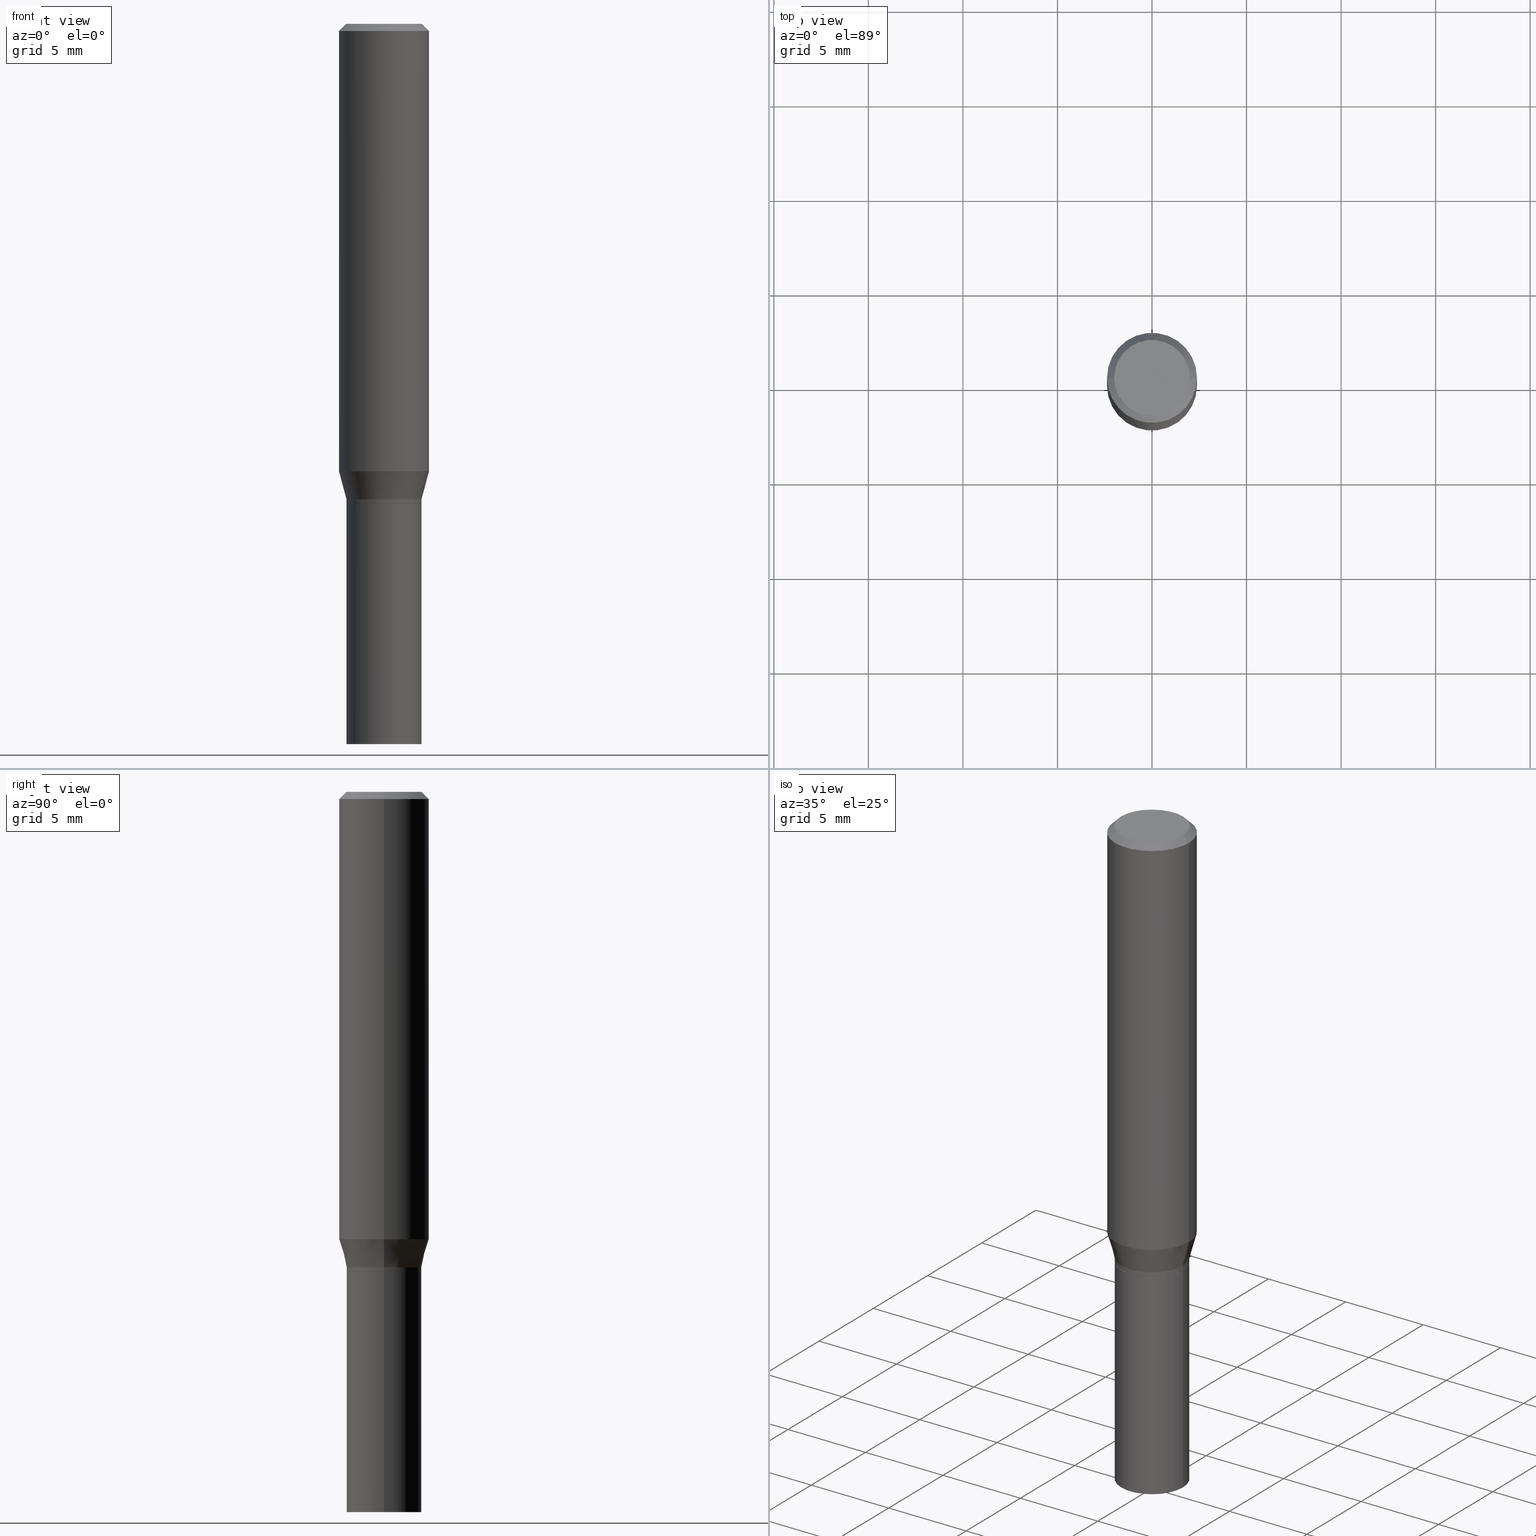
[diagram: canonical four-view strip — front | top / right | iso, engineering-drawing reading convention]
A machine part, canonical four-view strip (front | top / right | iso — engineering-drawing reading convention). The complete STEP part file that produces these views, byte-faithful:
ISO-10303-21;
HEADER;
FILE_DESCRIPTION (( 'STEP AP203' ),
    '1' );
FILE_NAME ('30440.STEP',
    '2024-03-13T16:10:18',
    ( '' ),
    ( '' ),
    'SwSTEP 2.0',
    'SolidWorks 2023',
    '' );
FILE_SCHEMA (( 'CONFIG_CONTROL_DESIGN' ));
ENDSEC;

DATA;
#1 = CONICAL_SURFACE ( 'NONE', #105, 0.07810000000000004439, 0.2617993877991501850 ) ;
#2 = DIRECTION ( 'NONE',  ( 2.438088387897960049E-29, -3.491481338843145188E-15, -1.000000000000000000 ) ) ;
#3 = DIRECTION ( 'NONE',  ( 1.000000000000000000, -6.982962677686265922E-15, 0.000000000000000000 ) ) ;
#4 = CIRCLE ( 'NONE', #417, 0.07810000000000004439 ) ;
#5 = VERTEX_POINT ( 'NONE', #394 ) ;
#6 = CARTESIAN_POINT ( 'NONE',  ( 3.668203209277705088E-31, -5.237222008264718399E-17, -0.01499999999999999944 ) ) ;
#7 = DIRECTION ( 'NONE',  ( 0.7071067811865469066, -7.319954787623254468E-15, -0.7071067811865481278 ) ) ;
#8 = CARTESIAN_POINT ( 'NONE',  ( 0.000000000000000000, 0.000000000000000000, 0.000000000000000000 ) ) ;
#9 = CIRCLE ( 'NONE', #368, 0.07810000000000000275 ) ;
#10 = CC_DESIGN_APPROVAL ( #120, ( #254 ) ) ;
#11 = VERTEX_POINT ( 'NONE', #351 ) ;
#12 = ADVANCED_FACE ( 'NONE', ( #389 ), #95, .F. ) ;
#13 = ORIENTED_EDGE ( 'NONE', *, *, #46, .F. ) ;
#14 = VECTOR ( 'NONE', #137, 39.37007874015748143 ) ;
#15 = ORIENTED_EDGE ( 'NONE', *, *, #307, .T. ) ;
#16 = MANIFOLD_SOLID_BREP ( 'Body-Move/Copy2[1]', #253 ) ;
#17 = ORIENTED_EDGE ( 'NONE', *, *, #89, .F. ) ;
#18 = EDGE_CURVE ( 'NONE', #153, #402, #134, .T. ) ;
#19 = DIRECTION ( 'NONE',  ( 2.438088387897960049E-29, -3.491481338843145188E-15, -1.000000000000000000 ) ) ;
#20 = PERSON_AND_ORGANIZATION ( #39, #456 ) ;
#21 = ORIENTED_EDGE ( 'NONE', *, *, #399, .F. ) ;
#22 = DIRECTION ( 'NONE',  ( 0.2588190451025214611, 1.565188264969620982E-15, 0.9659258262890679791 ) ) ;
#23 = DIRECTION ( 'NONE',  ( 1.000000000000000000, -6.982962677686269077E-15, 0.000000000000000000 ) ) ;
#24 = SECURITY_CLASSIFICATION_LEVEL ( 'unclassified' ) ;
#25 = DIRECTION ( 'NONE',  ( 1.000000000000000000, -6.982962677686266711E-15, 0.000000000000000000 ) ) ;
#26 = LINE ( 'NONE', #92, #189 ) ;
#27 = CYLINDRICAL_SURFACE ( 'NONE', #409, 0.07810000000000000275 ) ;
#28 = VECTOR ( 'NONE', #216, 39.37007874015748143 ) ;
#29 = PERSON_AND_ORGANIZATION_ROLE ( 'creator' ) ;
#30 = LINE ( 'NONE', #428, #28 ) ;
#31 = EDGE_CURVE ( 'NONE', #11, #341, #267, .T. ) ;
#32 = LINE ( 'NONE', #423, #154 ) ;
#33 = PRODUCT_DEFINITION ( 'UNKNOWN', '', #328, #268 ) ;
#34 = MANIFOLD_SOLID_BREP ( 'Body-Move/Copy2[2]', #45 ) ;
#35 = PLANE ( 'NONE',  #77 ) ;
#36 = AXIS2_PLACEMENT_3D ( 'NONE', #465, #391, #237 ) ;
#37 = APPROVAL_PERSON_ORGANIZATION ( #20, #48, #284 ) ;
#38 = EDGE_LOOP ( 'NONE', ( #306, #161, #299, #17 ) ) ;
#39 = PERSON ( 'UNSPECIFIED', 'UNSPECIFIED', 'UNSPECIFIED', ('UNSPECIFIED'), ('UNSPECIFIED'), ('UNSPECIFIED') ) ;
#40 = DIRECTION ( 'NONE',  ( -1.000000000000000000, 6.982962677686265922E-15, 0.000000000000000000 ) ) ;
#41 = CIRCLE ( 'NONE', #234, 0.07875000000000001443 ) ;
#42 = CC_DESIGN_SECURITY_CLASSIFICATION ( #254, ( #328 ) ) ;
#43 = FACE_OUTER_BOUND ( 'NONE', #50, .T. ) ;
#44 = EDGE_LOOP ( 'NONE', ( #196, #47 ) ) ;
#45 = CLOSED_SHELL ( 'NONE', ( #250, #180, #219, #359, #228, #426, #289, #322, #104, #12, #187, #67 ) ) ;
#46 = EDGE_CURVE ( 'NONE', #199, #205, #32, .T. ) ;
#47 = ORIENTED_EDGE ( 'NONE', *, *, #433, .F. ) ;
#48 = APPROVAL ( #464, 'UNSPECIFIED' ) ;
#49 = VERTEX_POINT ( 'NONE', #57 ) ;
#50 = EDGE_LOOP ( 'NONE', ( #160, #80, #400, #167 ) ) ;
#51 = ORIENTED_EDGE ( 'NONE', *, *, #454, .F. ) ;
#52 = CARTESIAN_POINT ( 'NONE',  ( 3.668203209277704895E-29, -5.237222008264718177E-15, -1.500000000000000222 ) ) ;
#53 = EDGE_LOOP ( 'NONE', ( #148, #108 ) ) ;
#54 = DIRECTION ( 'NONE',  ( -2.445468806185136597E-29, 3.491481338843145583E-15, 1.000000000000000000 ) ) ;
#55 = PERSON_AND_ORGANIZATION_ROLE ( 'creator' ) ;
#56 = EDGE_CURVE ( 'NONE', #402, #337, #162, .T. ) ;
#57 = CARTESIAN_POINT ( 'NONE',  ( 0.09375000000000001388, -3.907293739496527425E-15, -0.9315934048615475138 ) ) ;
#58 = LINE ( 'NONE', #206, #111 ) ;
#59 = CARTESIAN_POINT ( 'NONE',  ( 0.000000000000000000, 0.000000000000000000, 0.000000000000000000 ) ) ;
#60 = FACE_OUTER_BOUND ( 'NONE', #113, .T. ) ;
#61 = DIRECTION ( 'NONE',  ( -2.438088387897960049E-29, 3.491481338843145188E-15, 1.000000000000000000 ) ) ;
#62 = DIRECTION ( 'NONE',  ( 1.000000000000000000, -6.982962677686269077E-15, 0.000000000000000000 ) ) ;
#63 = LINE ( 'NONE', #98, #244 ) ;
#64 = CARTESIAN_POINT ( 'NONE',  ( 2.278182611636715174E-29, -3.252640988463440710E-15, -0.9315934048615475138 ) ) ;
#65 = FACE_OUTER_BOUND ( 'NONE', #38, .T. ) ;
#66 = CONICAL_SURFACE ( 'NONE', #163, 0.07810000000000004439, 0.2617993877991501850 ) ;
#67 = ADVANCED_FACE ( 'NONE', ( #326 ), #172, .T. ) ;
#68 = DIRECTION ( 'NONE',  ( 1.000000000000000000, -6.982962677686266711E-15, 0.000000000000000000 ) ) ;
#69 = CARTESIAN_POINT ( 'NONE',  ( 2.445468806185136877E-29, -3.491481338843145977E-15, -1.000000000000000222 ) ) ;
#70 = DIRECTION ( 'NONE',  ( -2.445468806185136597E-29, 3.491481338843145583E-15, 1.000000000000000000 ) ) ;
#71 = CARTESIAN_POINT ( 'NONE',  ( 0.000000000000000000, 0.000000000000000000, 0.000000000000000000 ) ) ;
#72 = CIRCLE ( 'NONE', #342, 0.09375000000000001388 ) ;
#73 = CARTESIAN_POINT ( 'NONE',  ( 0.07810000000000000275, -4.036850723970443413E-15, -1.000000000000000222 ) ) ;
#74 = PERSON_AND_ORGANIZATION ( #39, #456 ) ;
#75 = VERTEX_POINT ( 'NONE', #319 ) ;
#76 = ORIENTED_EDGE ( 'NONE', *, *, #208, .T. ) ;
#77 = AXIS2_PLACEMENT_3D ( 'NONE', #329, #2, #141 ) ;
#78 = CIRCLE ( 'NONE', #210, 0.07875000000000001443 ) ;
#79 = EDGE_LOOP ( 'NONE', ( #370, #129, #338, #191 ) ) ;
#80 = ORIENTED_EDGE ( 'NONE', *, *, #292, .T. ) ;
#81 = ORIENTED_EDGE ( 'NONE', *, *, #217, .F. ) ;
#82 = CARTESIAN_POINT ( 'NONE',  ( -0.07810000000000004439, -2.934801721545085420E-15, -0.9995000000000000551 ) ) ;
#83 = APPROVAL_ROLE ( '' ) ;
#84 = CONICAL_SURFACE ( 'NONE', #352, 0.07760000000000000231, 0.7853981633974653764 ) ;
#85 = DIRECTION ( 'NONE',  ( -1.000000000000000000, 6.982962677686265922E-15, -4.876176775795935793E-29 ) ) ;
#86 = CC_DESIGN_PERSON_AND_ORGANIZATION_ASSIGNMENT ( #323, #29, ( #33 ) ) ;
#87 = CARTESIAN_POINT ( 'NONE',  ( 2.445468806185136877E-29, -3.491481338843145977E-15, -1.000000000000000222 ) ) ;
#88 = DIRECTION ( 'NONE',  ( 1.000000000000000000, -6.982962677686266711E-15, 0.000000000000000000 ) ) ;
#89 = EDGE_CURVE ( 'NONE', #341, #226, #90, .T. ) ;
#90 = LINE ( 'NONE', #380, #14 ) ;
#91 = DATE_TIME_ROLE ( 'creation_date' ) ;
#92 = CARTESIAN_POINT ( 'NONE',  ( -0.07810000000000000275, 5.549338766286382647E-16, -3.841688305489081275E-30 ) ) ;
#93 = FACE_OUTER_BOUND ( 'NONE', #375, .T. ) ;
#94 = AXIS2_PLACEMENT_3D ( 'NONE', #64, #358, #121 ) ;
#95 = PLANE ( 'NONE',  #447 ) ;
#96 = DIRECTION ( 'NONE',  ( -2.445468806185136597E-29, 3.491481338843145583E-15, 1.000000000000000000 ) ) ;
#97 = CARTESIAN_POINT ( 'NONE',  ( 3.668203209277705088E-31, -5.237222008264718399E-17, -0.01499999999999999944 ) ) ;
#98 = CARTESIAN_POINT ( 'NONE',  ( -0.07760000000000000231, -2.940100175893308216E-15, -1.000000000000000222 ) ) ;
#99 = EDGE_CURVE ( 'NONE', #11, #199, #63, .T. ) ;
#100 = DIRECTION ( 'NONE',  ( -2.445468806185136597E-29, 3.491481338843145583E-15, 1.000000000000000000 ) ) ;
#101 = LENGTH_MEASURE_WITH_UNIT ( LENGTH_MEASURE( 0.02539999999999999897 ), #142 );
#102 = PERSON_AND_ORGANIZATION_ROLE ( 'design_owner' ) ;
#103 = CIRCLE ( 'NONE', #434, 0.07810000000000004439 ) ;
#104 = ADVANCED_FACE ( 'NONE', ( #357 ), #35, .F. ) ;
#105 = AXIS2_PLACEMENT_3D ( 'NONE', #110, #145, #252 ) ;
#106 = DIRECTION ( 'NONE',  ( 1.000000000000000000, -6.982962677686266711E-15, 0.000000000000000000 ) ) ;
#107 = APPLICATION_PROTOCOL_DEFINITION ( 'international standard', 'config_control_design', 1994, #283 ) ;
#108 = ORIENTED_EDGE ( 'NONE', *, *, #31, .F. ) ;
#109 = DIRECTION ( 'NONE',  ( 1.000000000000000000, -6.982962677686267499E-15, 4.876807983162778740E-29 ) ) ;
#110 = CARTESIAN_POINT ( 'NONE',  ( 2.421014118123285332E-29, -3.456566525454714328E-15, -0.9900000000000001021 ) ) ;
#111 = VECTOR ( 'NONE', #211, 39.37007874015748143 ) ;
#112 = ORIENTED_EDGE ( 'NONE', *, *, #331, .T. ) ;
#113 = EDGE_LOOP ( 'NONE', ( #51, #264, #445, #449 ) ) ;
#114 = ORIENTED_EDGE ( 'NONE', *, *, #18, .T. ) ;
#115 = AXIS2_PLACEMENT_3D ( 'NONE', #97, #249, #392 ) ;
#116 = APPROVAL_PERSON_ORGANIZATION ( #74, #132, #178 ) ;
#117 = VERTEX_POINT ( 'NONE', #288 ) ;
#118 = ORIENTED_EDGE ( 'NONE', *, *, #18, .F. ) ;
#119 = CALENDAR_DATE ( 2024, 13, 3 ) ;
#120 = APPROVAL ( #415, 'UNSPECIFIED' ) ;
#121 = DIRECTION ( 'NONE',  ( 1.000000000000000000, -6.982962677686266711E-15, 0.000000000000000000 ) ) ;
#122 = ORIENTED_EDGE ( 'NONE', *, *, #31, .T. ) ;
#123 = LOCAL_TIME ( 12, 10, 18.00000000000000000, #325 ) ;
#124 = CARTESIAN_POINT ( 'NONE',  ( 2.421014118123285332E-29, -3.456566525454714328E-15, -0.9900000000000001021 ) ) ;
#125 = DIRECTION ( 'NONE',  ( -2.445468806185136597E-29, 3.491481338843145583E-15, 1.000000000000000000 ) ) ;
#126 = FACE_OUTER_BOUND ( 'NONE', #271, .T. ) ;
#127 = ADVANCED_FACE ( 'NONE', ( #429 ), #251, .F. ) ;
#128 = APPROVAL_DATE_TIME ( #384, #132 ) ;
#129 = ORIENTED_EDGE ( 'NONE', *, *, #399, .T. ) ;
#130 = CARTESIAN_POINT ( 'NONE',  ( 0.000000000000000000, 0.000000000000000000, 0.000000000000000000 ) ) ;
#131 = CARTESIAN_POINT ( 'NONE',  ( 2.444246071782044356E-29, -3.489735598173724079E-15, -0.9995000000000000551 ) ) ;
#132 = APPROVAL ( #274, 'UNSPECIFIED' ) ;
#133 = COORDINATED_UNIVERSAL_TIME_OFFSET ( 5, 0, .BEHIND. ) ;
#134 = LINE ( 'NONE', #280, #387 ) ;
#135 = CARTESIAN_POINT ( 'NONE',  ( 0.07810000000000000275, -5.453693851272974364E-16, 3.808294061896625703E-30 ) ) ;
#136 = DIRECTION ( 'NONE',  ( 1.000000000000000000, -6.982962677686269077E-15, 0.000000000000000000 ) ) ;
#137 = DIRECTION ( 'NONE',  ( 0.7071067811865595631, -2.468850131082382884E-15, 0.7071067811865354713 ) ) ;
#138 = VECTOR ( 'NONE', #220, 39.37007874015748143 ) ;
#139 = AXIS2_PLACEMENT_3D ( 'NONE', #52, #96, #88 ) ;
#140 = EDGE_CURVE ( 'NONE', #117, #337, #278, .T. ) ;
#141 = DIRECTION ( 'NONE',  ( -1.000000000000000000, 6.982962677686265922E-15, -4.876176775795935793E-29 ) ) ;
#142 =( LENGTH_UNIT ( ) NAMED_UNIT ( * ) SI_UNIT ( $, .METRE. ) );
#143 = CARTESIAN_POINT ( 'NONE',  ( -0.09375000000000001388, 6.661338147750940229E-16, -4.611501647113973995E-30 ) ) ;
#144 = EDGE_CURVE ( 'NONE', #151, #5, #182, .T. ) ;
#145 = DIRECTION ( 'NONE',  ( -2.445468806185136597E-29, 3.491481338843145583E-15, 1.000000000000000000 ) ) ;
#146 = APPLICATION_PROTOCOL_DEFINITION ( 'international standard', 'config_control_design', 1994, #383 ) ;
#147 = DIRECTION ( 'NONE',  ( -2.445468806185136877E-29, 3.491481338843145188E-15, 1.000000000000000000 ) ) ;
#148 = ORIENTED_EDGE ( 'NONE', *, *, #185, .F. ) ;
#149 = CONICAL_SURFACE ( 'NONE', #395, 0.07760000000000000231, 0.7853981633974653764 ) ;
#150 = DIRECTION ( 'NONE',  ( 2.445468806185136597E-29, -3.491481338843145583E-15, -1.000000000000000000 ) ) ;
#151 = VERTEX_POINT ( 'NONE', #73 ) ;
#152 = CARTESIAN_POINT ( 'NONE',  ( -4.217098251943042903E-46, 6.020898656931179793E-32, 1.724453912999037237E-17 ) ) ;
#153 = VERTEX_POINT ( 'NONE', #192 ) ;
#154 = VECTOR ( 'NONE', #247, 39.37007874015748143 ) ;
#155 = CC_DESIGN_APPROVAL ( #48, ( #328 ) ) ;
#156 = DIRECTION ( 'NONE',  ( -2.445468806185136597E-29, 3.491481338843145583E-15, 1.000000000000000000 ) ) ;
#157 = EDGE_LOOP ( 'NONE', ( #305, #197, #361, #118 ) ) ;
#158 = CARTESIAN_POINT ( 'NONE',  ( 2.445468806185136877E-29, -3.491481338843145977E-15, -1.000000000000000222 ) ) ;
#159 = DIRECTION ( 'NONE',  ( -2.445468806185136597E-29, 3.491481338843145583E-15, 1.000000000000000000 ) ) ;
#160 = ORIENTED_EDGE ( 'NONE', *, *, #311, .T. ) ;
#161 = ORIENTED_EDGE ( 'NONE', *, *, #99, .T. ) ;
#162 = CIRCLE ( 'NONE', #455, 0.09375000000000001388 ) ;
#163 = AXIS2_PLACEMENT_3D ( 'NONE', #194, #335, #406 ) ;
#164 = ORIENTED_EDGE ( 'NONE', *, *, #282, .T. ) ;
#165 = PRODUCT_DEFINITION_SHAPE ( 'NONE', 'NONE',  #33 ) ;
#166 = VERTEX_POINT ( 'NONE', #362 ) ;
#167 = ORIENTED_EDGE ( 'NONE', *, *, #410, .F. ) ;
#168 = CYLINDRICAL_SURFACE ( 'NONE', #260, 0.07810000000000000275 ) ;
#169 = CARTESIAN_POINT ( 'NONE',  ( 0.000000000000000000, 0.000000000000000000, 0.000000000000000000 ) ) ;
#170 = CALENDAR_DATE ( 2024, 13, 3 ) ;
#171 = AXIS2_PLACEMENT_3D ( 'NONE', #8, #156, #223 ) ;
#172 = CYLINDRICAL_SURFACE ( 'NONE', #36, 0.07810000000000004439 ) ;
#173 = LINE ( 'NONE', #143, #441 ) ;
#174 = DIRECTION ( 'NONE',  ( -2.445468806185136597E-29, 3.491481338843145583E-15, 1.000000000000000000 ) ) ;
#175 = DIMENSIONAL_EXPONENTS ( 1.000000000000000000, 0.000000000000000000, 0.000000000000000000, 0.000000000000000000, 0.000000000000000000, 0.000000000000000000, 0.000000000000000000 ) ;
#176 = CALENDAR_DATE ( 2024, 13, 3 ) ;
#177 = LINE ( 'NONE', #135, #379 ) ;
#178 = APPROVAL_ROLE ( '' ) ;
#179 = DIRECTION ( 'NONE',  ( -2.445468806185136597E-29, 3.491481338843145583E-15, 1.000000000000000000 ) ) ;
#180 = ADVANCED_FACE ( 'NONE', ( #65 ), #84, .T. ) ;
#181 = ORIENTED_EDGE ( 'NONE', *, *, #204, .F. ) ;
#182 = CIRCLE ( 'NONE', #296, 0.07810000000000000275 ) ;
#183 = AXIS2_PLACEMENT_3D ( 'NONE', #71, #367, #431 ) ;
#184 = CARTESIAN_POINT ( 'NONE',  ( 3.668203209277705088E-31, -5.237222008264718399E-17, -0.01499999999999999944 ) ) ;
#185 = EDGE_CURVE ( 'NONE', #341, #11, #198, .T. ) ;
#186 = ORIENTED_EDGE ( 'NONE', *, *, #282, .F. ) ;
#187 = ADVANCED_FACE ( 'NONE', ( #340 ), #149, .T. ) ;
#188 = CIRCLE ( 'NONE', #207, 0.07810000000000004439 ) ;
#189 = VECTOR ( 'NONE', #356, 39.37007874015748143 ) ;
#190 = DIRECTION ( 'NONE',  ( 1.000000000000000000, -6.982962677686266711E-15, 0.000000000000000000 ) ) ;
#191 = ORIENTED_EDGE ( 'NONE', *, *, #393, .F. ) ;
#192 = CARTESIAN_POINT ( 'NONE',  ( -0.07875000000000001443, 5.760944209091169839E-16, 1.724453912998643423E-17 ) ) ;
#193 = CARTESIAN_POINT ( 'NONE',  ( 0.07810000000000004439, -4.035104983301021910E-15, -0.9995000000000000551 ) ) ;
#194 = CARTESIAN_POINT ( 'NONE',  ( 2.421014118123285332E-29, -3.456566525454714328E-15, -0.9900000000000001021 ) ) ;
#195 = AXIS2_PLACEMENT_3D ( 'NONE', #248, #382, #314 ) ;
#196 = ORIENTED_EDGE ( 'NONE', *, *, #442, .F. ) ;
#197 = ORIENTED_EDGE ( 'NONE', *, *, #140, .T. ) ;
#198 = CIRCLE ( 'NONE', #316, 0.07760000000000000231 ) ;
#199 = VERTEX_POINT ( 'NONE', #82 ) ;
#200 = CARTESIAN_POINT ( 'NONE',  ( 5.453693851273217925E-16, 0.07809999999999651943, -1.000000000000000444 ) ) ;
#201 = SHAPE_DEFINITION_REPRESENTATION ( #165, #225 ) ;
#202 = DIRECTION ( 'NONE',  ( 1.000000000000000000, -6.982962677686265922E-15, 4.876176775795935793E-29 ) ) ;
#203 = DIRECTION ( 'NONE',  ( 1.000000000000000000, -6.982962677686266711E-15, 4.876176775795935232E-29 ) ) ;
#204 = EDGE_CURVE ( 'NONE', #337, #402, #285, .T. ) ;
#205 = VERTEX_POINT ( 'NONE', #290 ) ;
#206 = CARTESIAN_POINT ( 'NONE',  ( 0.09375000000000001388, -6.546527510330875041E-16, 4.571415727308690506E-30 ) ) ;
#207 = AXIS2_PLACEMENT_3D ( 'NONE', #315, #466, #23 ) ;
#208 = EDGE_CURVE ( 'NONE', #5, #151, #9, .T. ) ;
#209 = DIRECTION ( 'NONE',  ( 1.000000000000000000, -6.982962677686265922E-15, 0.000000000000000000 ) ) ;
#210 = AXIS2_PLACEMENT_3D ( 'NONE', #275, #125, #239 ) ;
#211 = DIRECTION ( 'NONE',  ( -2.445468806185136877E-29, 3.491481338843145188E-15, 1.000000000000000000 ) ) ;
#212 = CARTESIAN_POINT ( 'NONE',  ( 0.09375000000000001388, -7.070249711157346819E-16, -0.01499999999999999944 ) ) ;
#213 = DIRECTION ( 'NONE',  ( 1.000000000000000000, -6.982962677686266711E-15, 4.876176775795935232E-29 ) ) ;
#214 = DIRECTION ( 'NONE',  ( -2.445468806185136597E-29, 3.491481338843145583E-15, 1.000000000000000000 ) ) ;
#215 = EDGE_LOOP ( 'NONE', ( #411, #122, #377, #186 ) ) ;
#216 = DIRECTION ( 'NONE',  ( -0.2588190451025214611, 5.211531920934550253E-15, 0.9659258262890679791 ) ) ;
#217 = EDGE_CURVE ( 'NONE', #226, #75, #398, .T. ) ;
#218 = APPROVAL_PERSON_ORGANIZATION ( #355, #120, #83 ) ;
#219 = ADVANCED_FACE ( 'NONE', ( #363 ), #277, .T. ) ;
#220 = DIRECTION ( 'NONE',  ( -2.445468806185136877E-29, 3.491481338843145188E-15, 1.000000000000000000 ) ) ;
#221 = AXIS2_PLACEMENT_3D ( 'NONE', #200, #19, #85 ) ;
#222 = EDGE_CURVE ( 'NONE', #153, #117, #41, .T. ) ;
#223 = DIRECTION ( 'NONE',  ( 1.000000000000000000, -6.982962677686266711E-15, 4.876176775795936353E-29 ) ) ;
#224 = EDGE_LOOP ( 'NONE', ( #15, #443, #229, #81 ) ) ;
#225 = ADVANCED_BREP_SHAPE_REPRESENTATION ( '30440', ( #16, #34, #183 ), #235 ) ;
#226 = VERTEX_POINT ( 'NONE', #193 ) ;
#227 = DIRECTION ( 'NONE',  ( 1.000000000000000000, -6.982962677686266711E-15, 0.000000000000000000 ) ) ;
#228 = ADVANCED_FACE ( 'NONE', ( #43 ), #66, .T. ) ;
#229 = ORIENTED_EDGE ( 'NONE', *, *, #311, .F. ) ;
#230 = COORDINATED_UNIVERSAL_TIME_OFFSET ( 5, 0, .BEHIND. ) ;
#231 =( NAMED_UNIT ( * ) SI_UNIT ( $, .STERADIAN. ) SOLID_ANGLE_UNIT ( ) );
#232 = EDGE_LOOP ( 'NONE', ( #373, #427, #266, #259 ) ) ;
#233 = PRODUCT ( '30440', '30440', '', ( #295 ) ) ;
#234 = AXIS2_PLACEMENT_3D ( 'NONE', #152, #294, #109 ) ;
#235 =( GEOMETRIC_REPRESENTATION_CONTEXT ( 3 ) GLOBAL_UNCERTAINTY_ASSIGNED_CONTEXT ( ( #304 ) ) GLOBAL_UNIT_ASSIGNED_CONTEXT ( ( #396, #255, #231 ) ) REPRESENTATION_CONTEXT ( 'NONE', 'WORKASPACE' ) );
#236 = DIRECTION ( 'NONE',  ( -2.445468806185136597E-29, 3.491481338843145583E-15, 1.000000000000000000 ) ) ;
#237 = DIRECTION ( 'NONE',  ( 1.000000000000000000, -6.982962677686266711E-15, 4.876176775795936353E-29 ) ) ;
#238 = CYLINDRICAL_SURFACE ( 'NONE', #378, 0.09375000000000001388 ) ;
#239 = DIRECTION ( 'NONE',  ( 1.000000000000000000, -6.982962677686267499E-15, 4.876807983162778740E-29 ) ) ;
#240 = CC_DESIGN_PERSON_AND_ORGANIZATION_ASSIGNMENT ( #345, #350, ( #254 ) ) ;
#241 = DIRECTION ( 'NONE',  ( -2.445468806185136597E-29, 3.491481338843145583E-15, 1.000000000000000000 ) ) ;
#242 = CARTESIAN_POINT ( 'NONE',  ( 2.444246071782044356E-29, -3.489735598173724079E-15, -0.9995000000000000551 ) ) ;
#243 = DATE_TIME_ROLE ( 'classification_date' ) ;
#244 = VECTOR ( 'NONE', #353, 39.37007874015748143 ) ;
#245 = CARTESIAN_POINT ( 'NONE',  ( 3.668203209277705088E-31, -5.237222008264718399E-17, -0.01499999999999999944 ) ) ;
#246 = CC_DESIGN_APPROVAL ( #132, ( #33 ) ) ;
#247 = DIRECTION ( 'NONE',  ( -2.445468806185136877E-29, 3.491481338843145188E-15, 1.000000000000000000 ) ) ;
#248 = CARTESIAN_POINT ( 'NONE',  ( 3.668203209277704895E-29, -5.237222008264718177E-15, -1.500000000000000222 ) ) ;
#249 = DIRECTION ( 'NONE',  ( 2.445468806185136597E-29, -3.491481338843145583E-15, -1.000000000000000000 ) ) ;
#250 = ADVANCED_FACE ( 'NONE', ( #298 ), #263, .T. ) ;
#251 = PLANE ( 'NONE',  #403 ) ;
#252 = DIRECTION ( 'NONE',  ( 1.000000000000000000, -6.982962677686269077E-15, 0.000000000000000000 ) ) ;
#253 = CLOSED_SHELL ( 'NONE', ( #437, #127, #333, #265 ) ) ;
#254 = SECURITY_CLASSIFICATION ( '', '', #24 ) ;
#255 =( NAMED_UNIT ( * ) PLANE_ANGLE_UNIT ( ) SI_UNIT ( $, .RADIAN. ) );
#256 = ORIENTED_EDGE ( 'NONE', *, *, #433, .T. ) ;
#257 = VERTEX_POINT ( 'NONE', #444 ) ;
#258 = DIRECTION ( 'NONE',  ( 1.000000000000000000, -6.982962677686266711E-15, 0.000000000000000000 ) ) ;
#259 = ORIENTED_EDGE ( 'NONE', *, *, #330, .F. ) ;
#260 = AXIS2_PLACEMENT_3D ( 'NONE', #386, #462, #203 ) ;
#261 = CIRCLE ( 'NONE', #139, 0.07810000000000000275 ) ;
#262 = EDGE_LOOP ( 'NONE', ( #112, #461, #181, #405 ) ) ;
#263 = CYLINDRICAL_SURFACE ( 'NONE', #171, 0.07810000000000004439 ) ;
#264 = ORIENTED_EDGE ( 'NONE', *, *, #330, .T. ) ;
#265 = ADVANCED_FACE ( 'NONE', ( #369 ), #414, .F. ) ;
#266 = ORIENTED_EDGE ( 'NONE', *, *, #410, .T. ) ;
#267 = CIRCLE ( 'NONE', #440, 0.07760000000000000231 ) ;
#268 = DESIGN_CONTEXT ( 'detailed design', #283, 'design' ) ;
#269 = ORIENTED_EDGE ( 'NONE', *, *, #208, .F. ) ;
#270 = CALENDAR_DATE ( 2024, 13, 3 ) ;
#271 = EDGE_LOOP ( 'NONE', ( #21, #256, #438, #269 ) ) ;
#272 = DATE_AND_TIME ( #422, #425 ) ;
#273 = CARTESIAN_POINT ( 'NONE',  ( -0.09375000000000001388, -2.586507173688346391E-15, -0.9315934048615475138 ) ) ;
#274 = APPROVAL_STATUS ( 'not_yet_approved' ) ;
#275 = CARTESIAN_POINT ( 'NONE',  ( -4.217098251943042903E-46, 6.020898656931179793E-32, 1.724453912999037237E-17 ) ) ;
#276 = CARTESIAN_POINT ( 'NONE',  ( 2.278182611636715174E-29, -3.252640988463440710E-15, -0.9315934048615475138 ) ) ;
#277 = CONICAL_SURFACE ( 'NONE', #327, 0.09375000000000001388, 0.7853981633974473908 ) ;
#278 = LINE ( 'NONE', #418, #336 ) ;
#279 = DATE_AND_TIME ( #119, #436 ) ;
#280 = CARTESIAN_POINT ( 'NONE',  ( -0.09375000000000001388, 6.022805309504404249E-16, -0.01499999999999999944 ) ) ;
#281 = FACE_OUTER_BOUND ( 'NONE', #232, .T. ) ;
#282 = EDGE_CURVE ( 'NONE', #199, #226, #103, .T. ) ;
#283 = APPLICATION_CONTEXT ( 'configuration controlled 3d designs of mechanical parts and assemblies' ) ;
#284 = APPROVAL_ROLE ( '' ) ;
#285 = CIRCLE ( 'NONE', #372, 0.09375000000000001388 ) ;
#286 = ORIENTED_EDGE ( 'NONE', *, *, #222, .F. ) ;
#287 = DIRECTION ( 'NONE',  ( 1.000000000000000000, -6.982962677686265922E-15, 4.876176775795935793E-29 ) ) ;
#288 = CARTESIAN_POINT ( 'NONE',  ( 0.07875000000000001443, -6.179040623491182236E-16, 1.724453912999445534E-17 ) ) ;
#289 = ADVANCED_FACE ( 'NONE', ( #60 ), #321, .T. ) ;
#290 = CARTESIAN_POINT ( 'NONE',  ( -0.07810000000000004439, -2.744069911257211227E-15, -0.9900000000000001021 ) ) ;
#291 = AXIS2_PLACEMENT_3D ( 'NONE', #131, #424, #452 ) ;
#292 = EDGE_CURVE ( 'NONE', #205, #413, #30, .T. ) ;
#293 = ORIENTED_EDGE ( 'NONE', *, *, #217, .T. ) ;
#294 = DIRECTION ( 'NONE',  ( -2.445468806185136597E-29, 3.491481338843145583E-15, 1.000000000000000000 ) ) ;
#295 = MECHANICAL_CONTEXT ( 'NONE', #383, 'mechanical' ) ;
#296 = AXIS2_PLACEMENT_3D ( 'NONE', #397, #432, #190 ) ;
#297 = LOCAL_TIME ( 12, 10, 18.00000000000000000, #310 ) ;
#298 = FACE_OUTER_BOUND ( 'NONE', #224, .T. ) ;
#299 = ORIENTED_EDGE ( 'NONE', *, *, #307, .F. ) ;
#300 = ORIENTED_EDGE ( 'NONE', *, *, #56, .T. ) ;
#301 = CC_DESIGN_PERSON_AND_ORGANIZATION_ASSIGNMENT ( #308, #55, ( #328 ) ) ;
#302 = ORIENTED_EDGE ( 'NONE', *, *, #371, .F. ) ;
#303 = CIRCLE ( 'NONE', #94, 0.09375000000000001388 ) ;
#304 = UNCERTAINTY_MEASURE_WITH_UNIT (LENGTH_MEASURE( 1.000000000000000082E-05 ), #396, 'distance_accuracy_value', 'NONE');
#305 = ORIENTED_EDGE ( 'NONE', *, *, #446, .F. ) ;
#306 = ORIENTED_EDGE ( 'NONE', *, *, #185, .T. ) ;
#307 = EDGE_CURVE ( 'NONE', #226, #199, #408, .T. ) ;
#308 = PERSON_AND_ORGANIZATION ( #39, #456 ) ;
#309 = ORIENTED_EDGE ( 'NONE', *, *, #144, .T. ) ;
#310 = COORDINATED_UNIVERSAL_TIME_OFFSET ( 5, 0, .BEHIND. ) ;
#311 = EDGE_CURVE ( 'NONE', #75, #205, #188, .T. ) ;
#312 = DIRECTION ( 'NONE',  ( -2.438088387897960049E-29, 3.491481338843145188E-15, 1.000000000000000000 ) ) ;
#313 = FACE_OUTER_BOUND ( 'NONE', #262, .T. ) ;
#314 = DIRECTION ( 'NONE',  ( 1.000000000000000000, -6.982962677686266711E-15, 0.000000000000000000 ) ) ;
#315 = CARTESIAN_POINT ( 'NONE',  ( 2.421014118123285332E-29, -3.456566525454714328E-15, -0.9900000000000001021 ) ) ;
#316 = AXIS2_PLACEMENT_3D ( 'NONE', #158, #416, #258 ) ;
#317 = VECTOR ( 'NONE', #22, 39.37007874015748143 ) ;
#318 = COORDINATED_UNIVERSAL_TIME_OFFSET ( 5, 0, .BEHIND. ) ;
#319 = CARTESIAN_POINT ( 'NONE',  ( 0.07810000000000004439, -4.001935910582012553E-15, -0.9900000000000001021 ) ) ;
#320 = DIRECTION ( 'NONE',  ( -2.445468806185136597E-29, 3.491481338843145583E-15, 1.000000000000000000 ) ) ;
#321 = CYLINDRICAL_SURFACE ( 'NONE', #366, 0.09375000000000001388 ) ;
#322 = ADVANCED_FACE ( 'NONE', ( #93 ), #332, .T. ) ;
#323 = PERSON_AND_ORGANIZATION ( #39, #456 ) ;
#324 = CC_DESIGN_DATE_AND_TIME_ASSIGNMENT ( #279, #243, ( #254 ) ) ;
#325 = COORDINATED_UNIVERSAL_TIME_OFFSET ( 5, 0, .BEHIND. ) ;
#326 = FACE_OUTER_BOUND ( 'NONE', #365, .T. ) ;
#327 = AXIS2_PLACEMENT_3D ( 'NONE', #6, #150, #40 ) ;
#328 = PRODUCT_DEFINITION_FORMATION_WITH_SPECIFIED_SOURCE ( 'ANY', '', #233, .NOT_KNOWN. ) ;
#329 = CARTESIAN_POINT ( 'NONE',  ( 5.499083108677934443E-16, 0.07875000000000001443, -2.663318858689025652E-16 ) ) ;
#330 = EDGE_CURVE ( 'NONE', #413, #49, #303, .T. ) ;
#331 = EDGE_CURVE ( 'NONE', #49, #413, #72, .T. ) ;
#332 = CONICAL_SURFACE ( 'NONE', #115, 0.09375000000000001388, 0.7853981633974473908 ) ;
#333 = ADVANCED_FACE ( 'NONE', ( #126 ), #168, .T. ) ;
#334 = DIRECTION ( 'NONE',  ( -2.445468806185136597E-29, 3.491481338843145583E-15, 1.000000000000000000 ) ) ;
#335 = DIRECTION ( 'NONE',  ( -2.445468806185136597E-29, 3.491481338843145583E-15, 1.000000000000000000 ) ) ;
#336 = VECTOR ( 'NONE', #7, 39.37007874015748143 ) ;
#337 = VERTEX_POINT ( 'NONE', #212 ) ;
#338 = ORIENTED_EDGE ( 'NONE', *, *, #144, .F. ) ;
#339 = PERSON_AND_ORGANIZATION ( #39, #456 ) ;
#340 = FACE_OUTER_BOUND ( 'NONE', #215, .T. ) ;
#341 = VERTEX_POINT ( 'NONE', #381 ) ;
#342 = AXIS2_PLACEMENT_3D ( 'NONE', #276, #236, #349 ) ;
#343 = ORIENTED_EDGE ( 'NONE', *, *, #222, .T. ) ;
#344 = CC_DESIGN_PERSON_AND_ORGANIZATION_ASSIGNMENT ( #339, #102, ( #233 ) ) ;
#345 = PERSON_AND_ORGANIZATION ( #39, #456 ) ;
#346 = CARTESIAN_POINT ( 'NONE',  ( 3.576687321579069994E-29, -5.368277968210015545E-15, -1.500000000000000222 ) ) ;
#347 = CARTESIAN_POINT ( 'NONE',  ( 2.445468806185136877E-29, -3.491481338843145977E-15, -1.000000000000000222 ) ) ;
#348 = CARTESIAN_POINT ( 'NONE',  ( 0.07810000000000004439, -4.001935910582012553E-15, -0.9900000000000001021 ) ) ;
#349 = DIRECTION ( 'NONE',  ( 1.000000000000000000, -6.982962677686266711E-15, 0.000000000000000000 ) ) ;
#350 = PERSON_AND_ORGANIZATION_ROLE ( 'classification_officer' ) ;
#351 = CARTESIAN_POINT ( 'NONE',  ( -0.07760000000000000231, -2.937450948719197015E-15, -1.000000000000000222 ) ) ;
#352 = AXIS2_PLACEMENT_3D ( 'NONE', #69, #100, #68 ) ;
#353 = DIRECTION ( 'NONE',  ( -0.7071067811865595631, 7.493145998870398336E-15, 0.7071067811865354713 ) ) ;
#354 = DIRECTION ( 'NONE',  ( -2.445468806185136597E-29, 3.491481338843145583E-15, 1.000000000000000000 ) ) ;
#355 = PERSON_AND_ORGANIZATION ( #39, #456 ) ;
#356 = DIRECTION ( 'NONE',  ( -2.445468806185136877E-29, 3.491481338843145188E-15, 1.000000000000000000 ) ) ;
#357 = FACE_OUTER_BOUND ( 'NONE', #407, .T. ) ;
#358 = DIRECTION ( 'NONE',  ( -2.445468806185136597E-29, 3.491481338843145583E-15, 1.000000000000000000 ) ) ;
#359 = ADVANCED_FACE ( 'NONE', ( #313 ), #238, .T. ) ;
#360 = CIRCLE ( 'NONE', #195, 0.07810000000000000275 ) ;
#361 = ORIENTED_EDGE ( 'NONE', *, *, #204, .T. ) ;
#362 = CARTESIAN_POINT ( 'NONE',  ( -0.07810000000000000275, -3.809417796925293812E-15, -1.500000000000000222 ) ) ;
#363 = FACE_OUTER_BOUND ( 'NONE', #157, .T. ) ;
#364 = EDGE_CURVE ( 'NONE', #49, #337, #58, .T. ) ;
#365 = EDGE_LOOP ( 'NONE', ( #13, #164, #293, #302 ) ) ;
#366 = AXIS2_PLACEMENT_3D ( 'NONE', #169, #214, #287 ) ;
#367 = DIRECTION ( 'NONE',  ( 0.000000000000000000, 0.000000000000000000, 1.000000000000000000 ) ) ;
#368 = AXIS2_PLACEMENT_3D ( 'NONE', #435, #70, #106 ) ;
#369 = FACE_OUTER_BOUND ( 'NONE', #448, .T. ) ;
#370 = ORIENTED_EDGE ( 'NONE', *, *, #442, .T. ) ;
#371 = EDGE_CURVE ( 'NONE', #205, #75, #4, .T. ) ;
#372 = AXIS2_PLACEMENT_3D ( 'NONE', #184, #334, #3 ) ;
#373 = ORIENTED_EDGE ( 'NONE', *, *, #292, .F. ) ;
#374 = CC_DESIGN_PERSON_AND_ORGANIZATION_ASSIGNMENT ( #457, #450, ( #328 ) ) ;
#375 = EDGE_LOOP ( 'NONE', ( #458, #286, #114, #300 ) ) ;
#376 = ORIENTED_EDGE ( 'NONE', *, *, #446, .T. ) ;
#377 = ORIENTED_EDGE ( 'NONE', *, *, #89, .T. ) ;
#378 = AXIS2_PLACEMENT_3D ( 'NONE', #130, #54, #390 ) ;
#379 = VECTOR ( 'NONE', #419, 39.37007874015748143 ) ;
#380 = CARTESIAN_POINT ( 'NONE',  ( 0.07760000000000000231, -4.033359242631600406E-15, -1.000000000000000222 ) ) ;
#381 = CARTESIAN_POINT ( 'NONE',  ( 0.07760000000000000231, -4.033359242631600406E-15, -1.000000000000000222 ) ) ;
#382 = DIRECTION ( 'NONE',  ( -2.445468806185136597E-29, 3.491481338843145583E-15, 1.000000000000000000 ) ) ;
#383 = APPLICATION_CONTEXT ( 'configuration controlled 3d designs of mechanical parts and assemblies' ) ;
#384 = DATE_AND_TIME ( #170, #123 ) ;
#385 = DIRECTION ( 'NONE',  ( -0.7071067811865469066, 2.468850131082250355E-15, -0.7071067811865481278 ) ) ;
#386 = CARTESIAN_POINT ( 'NONE',  ( 0.000000000000000000, 0.000000000000000000, 0.000000000000000000 ) ) ;
#387 = VECTOR ( 'NONE', #385, 39.37007874015748143 ) ;
#388 = DATE_AND_TIME ( #176, #297 ) ;
#389 = FACE_OUTER_BOUND ( 'NONE', #53, .T. ) ;
#390 = DIRECTION ( 'NONE',  ( 1.000000000000000000, -6.982962677686265922E-15, 4.876176775795935793E-29 ) ) ;
#391 = DIRECTION ( 'NONE',  ( -2.445468806185136597E-29, 3.491481338843145583E-15, 1.000000000000000000 ) ) ;
#392 = DIRECTION ( 'NONE',  ( -1.000000000000000000, 6.982962677686265922E-15, 0.000000000000000000 ) ) ;
#393 = EDGE_CURVE ( 'NONE', #257, #151, #177, .T. ) ;
#394 = CARTESIAN_POINT ( 'NONE',  ( -0.07810000000000000275, -3.809417796925293812E-15, -1.000000000000000222 ) ) ;
#395 = AXIS2_PLACEMENT_3D ( 'NONE', #347, #159, #227 ) ;
#396 =( CONVERSION_BASED_UNIT ( 'INCH', #101 ) LENGTH_UNIT ( ) NAMED_UNIT ( #175 ) );
#397 = CARTESIAN_POINT ( 'NONE',  ( 2.445468806185136877E-29, -3.491481338843145977E-15, -1.000000000000000222 ) ) ;
#398 = LINE ( 'NONE', #439, #138 ) ;
#399 = EDGE_CURVE ( 'NONE', #166, #5, #26, .T. ) ;
#400 = ORIENTED_EDGE ( 'NONE', *, *, #331, .F. ) ;
#401 = CC_DESIGN_DATE_AND_TIME_ASSIGNMENT ( #272, #91, ( #33 ) ) ;
#402 = VERTEX_POINT ( 'NONE', #459 ) ;
#403 = AXIS2_PLACEMENT_3D ( 'NONE', #346, #312, #453 ) ;
#404 = LOCAL_TIME ( 12, 10, 18.00000000000000000, #230 ) ;
#405 = ORIENTED_EDGE ( 'NONE', *, *, #364, .F. ) ;
#406 = DIRECTION ( 'NONE',  ( 1.000000000000000000, -6.982962677686269077E-15, 0.000000000000000000 ) ) ;
#407 = EDGE_LOOP ( 'NONE', ( #343, #376 ) ) ;
#408 = CIRCLE ( 'NONE', #291, 0.07810000000000004439 ) ;
#409 = AXIS2_PLACEMENT_3D ( 'NONE', #59, #320, #213 ) ;
#410 = EDGE_CURVE ( 'NONE', #75, #49, #451, .T. ) ;
#411 = ORIENTED_EDGE ( 'NONE', *, *, #99, .F. ) ;
#412 = DATE_AND_TIME ( #270, #404 ) ;
#413 = VERTEX_POINT ( 'NONE', #273 ) ;
#414 = PLANE ( 'NONE',  #221 ) ;
#415 = APPROVAL_STATUS ( 'not_yet_approved' ) ;
#416 = DIRECTION ( 'NONE',  ( -2.445468806185136597E-29, 3.491481338843145583E-15, 1.000000000000000000 ) ) ;
#417 = AXIS2_PLACEMENT_3D ( 'NONE', #124, #354, #62 ) ;
#418 = CARTESIAN_POINT ( 'NONE',  ( 0.09375000000000001388, -6.955439073737282618E-16, -0.01499999999999999944 ) ) ;
#419 = DIRECTION ( 'NONE',  ( -2.445468806185136877E-29, 3.491481338843145188E-15, 1.000000000000000000 ) ) ;
#420 = APPROVAL_DATE_TIME ( #412, #120 ) ;
#421 = CARTESIAN_POINT ( 'NONE',  ( 2.445468806185136877E-29, -3.491481338843145977E-15, -1.000000000000000222 ) ) ;
#422 = CALENDAR_DATE ( 2024, 13, 3 ) ;
#423 = CARTESIAN_POINT ( 'NONE',  ( -0.07810000000000004439, 5.549338766286385606E-16, -3.841688305489084077E-30 ) ) ;
#424 = DIRECTION ( 'NONE',  ( -2.445468806185136597E-29, 3.491481338843145583E-15, 1.000000000000000000 ) ) ;
#425 = LOCAL_TIME ( 12, 10, 18.00000000000000000, #318 ) ;
#426 = ADVANCED_FACE ( 'NONE', ( #281 ), #1, .T. ) ;
#427 = ORIENTED_EDGE ( 'NONE', *, *, #371, .T. ) ;
#428 = CARTESIAN_POINT ( 'NONE',  ( -0.07810000000000004439, -2.901632648826075669E-15, -0.9900000000000001021 ) ) ;
#429 = FACE_OUTER_BOUND ( 'NONE', #44, .T. ) ;
#430 = PRODUCT_RELATED_PRODUCT_CATEGORY ( 'detail', '', ( #233 ) ) ;
#431 = DIRECTION ( 'NONE',  ( 1.000000000000000000, 0.000000000000000000, 0.000000000000000000 ) ) ;
#432 = DIRECTION ( 'NONE',  ( -2.445468806185136597E-29, 3.491481338843145583E-15, 1.000000000000000000 ) ) ;
#433 = EDGE_CURVE ( 'NONE', #166, #257, #261, .T. ) ;
#434 = AXIS2_PLACEMENT_3D ( 'NONE', #242, #174, #136 ) ;
#435 = CARTESIAN_POINT ( 'NONE',  ( 2.445468806185136877E-29, -3.491481338843145977E-15, -1.000000000000000222 ) ) ;
#436 = LOCAL_TIME ( 12, 10, 18.00000000000000000, #133 ) ;
#437 = ADVANCED_FACE ( 'NONE', ( #463 ), #27, .T. ) ;
#438 = ORIENTED_EDGE ( 'NONE', *, *, #393, .T. ) ;
#439 = CARTESIAN_POINT ( 'NONE',  ( 0.07810000000000004439, -5.453693851272977322E-16, 3.808294061896628505E-30 ) ) ;
#440 = AXIS2_PLACEMENT_3D ( 'NONE', #421, #241, #25 ) ;
#441 = VECTOR ( 'NONE', #147, 39.37007874015748143 ) ;
#442 = EDGE_CURVE ( 'NONE', #257, #166, #360, .T. ) ;
#443 = ORIENTED_EDGE ( 'NONE', *, *, #46, .T. ) ;
#444 = CARTESIAN_POINT ( 'NONE',  ( 0.07810000000000000275, -5.782591393392015613E-15, -1.500000000000000222 ) ) ;
#445 = ORIENTED_EDGE ( 'NONE', *, *, #364, .T. ) ;
#446 = EDGE_CURVE ( 'NONE', #117, #153, #78, .T. ) ;
#447 = AXIS2_PLACEMENT_3D ( 'NONE', #87, #61, #202 ) ;
#448 = EDGE_LOOP ( 'NONE', ( #309, #76 ) ) ;
#449 = ORIENTED_EDGE ( 'NONE', *, *, #56, .F. ) ;
#450 = PERSON_AND_ORGANIZATION_ROLE ( 'design_supplier' ) ;
#451 = LINE ( 'NONE', #348, #317 ) ;
#452 = DIRECTION ( 'NONE',  ( 1.000000000000000000, -6.982962677686269077E-15, 0.000000000000000000 ) ) ;
#453 = DIRECTION ( 'NONE',  ( 1.000000000000000000, -6.982962677686265922E-15, 4.876176775795935793E-29 ) ) ;
#454 = EDGE_CURVE ( 'NONE', #413, #402, #173, .T. ) ;
#455 = AXIS2_PLACEMENT_3D ( 'NONE', #245, #179, #209 ) ;
#456 = ORGANIZATION ( 'UNSPECIFIED', 'UNSPECIFIED', '' ) ;
#457 = PERSON_AND_ORGANIZATION ( #39, #456 ) ;
#458 = ORIENTED_EDGE ( 'NONE', *, *, #140, .F. ) ;
#459 = CARTESIAN_POINT ( 'NONE',  ( -0.09375000000000001388, -9.863727894979499703E-16, -0.01499999999999999944 ) ) ;
#460 = APPROVAL_DATE_TIME ( #388, #48 ) ;
#461 = ORIENTED_EDGE ( 'NONE', *, *, #454, .T. ) ;
#462 = DIRECTION ( 'NONE',  ( -2.445468806185136597E-29, 3.491481338843145583E-15, 1.000000000000000000 ) ) ;
#463 = FACE_OUTER_BOUND ( 'NONE', #79, .T. ) ;
#464 = APPROVAL_STATUS ( 'not_yet_approved' ) ;
#465 = CARTESIAN_POINT ( 'NONE',  ( 0.000000000000000000, 0.000000000000000000, 0.000000000000000000 ) ) ;
#466 = DIRECTION ( 'NONE',  ( -2.445468806185136597E-29, 3.491481338843145583E-15, 1.000000000000000000 ) ) ;
ENDSEC;
END-ISO-10303-21;
